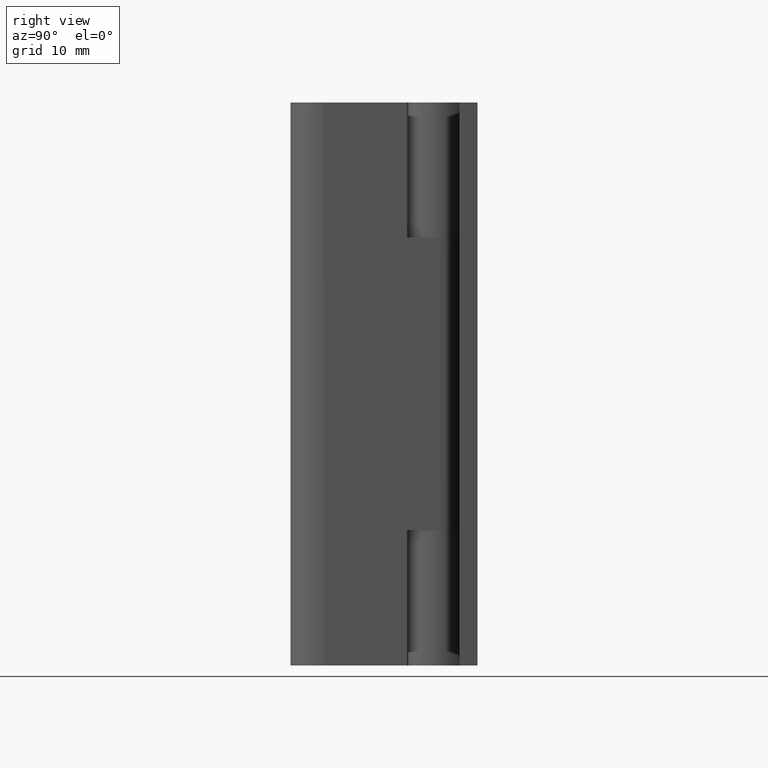
[diagram: clean part render]
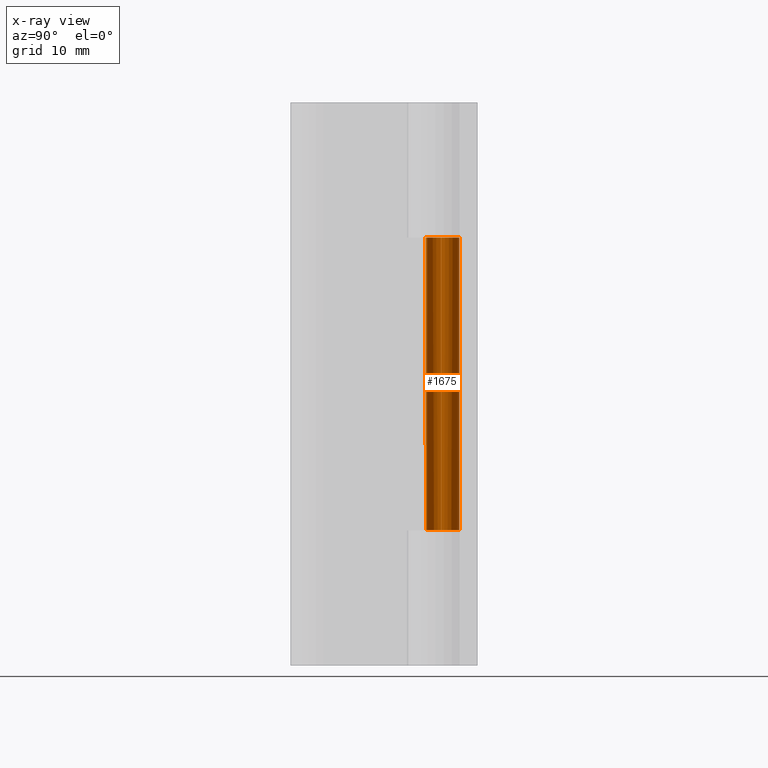
[diagram: x-ray — body ghosted, one internal face saturated and labeled with its STEP entity id]
A machine part, right view, then the same camera in x-ray: the body is ghosted and one INTERNAL B-rep face — a face not visible from any outside direction — is saturated and labeled: STEP entity #1675.
In plain terms, the highlighted face is a freeform B-spline surface patch.
Its self-contained STEP definition (entity closure, byte-faithful):
#929=CARTESIAN_POINT('',(1.494292002763210,-0.130734121322301,38.000006999999847));
#930=VERTEX_POINT('',#929);
#931=CARTESIAN_POINT('',(0.583391531890885,-1.381902428002066,38.000006999999847));
#932=VERTEX_POINT('',#931);
#933=CARTESIAN_POINT('',(1.494292002763210,-0.130734121322301,38.000006999999847));
#934=CARTESIAN_POINT('',(1.593654048131212,1.004974814262766,38.000006999999854));
#935=CARTESIAN_POINT('',(0.525999249306746,1.404750792748928,38.000006999999847));
#936=CARTESIAN_POINT('',(-0.541655549517720,1.804526771235089,38.000006999999854));
#937=CARTESIAN_POINT('',(-1.212661432739230,0.882865929542442,38.000006999999847));
#938=CARTESIAN_POINT('',(-1.883667315960740,-0.038794912150206,38.000006999999854));
#939=CARTESIAN_POINT('',(-1.175282553415192,-0.932046629540532,38.000006999999847));
#940=CARTESIAN_POINT('',(-0.466897790869645,-1.825298346930859,38.000006999999854));
#941=CARTESIAN_POINT('',(0.583391531890884,-1.381902428002067,38.000006999999847));
#949=(BOUNDED_CURVE()B_SPLINE_CURVE(2,(#933,#934,#935,#936,#937,#938,#939,#940,#941),.UNSPECIFIED.,.F.,.U.)B_SPLINE_CURVE_WITH_KNOTS((3,2,2,2,3),(0.0,0.250000000000000,0.500000000000000,0.750000000000000,1.0),.UNSPECIFIED.)CURVE()GEOMETRIC_REPRESENTATION_ITEM()RATIONAL_B_SPLINE_CURVE((1.0,0.796150126983554,1.0,0.796150126983554,1.0,0.796150126983554,1.0,0.796150126983554,1.0))REPRESENTATION_ITEM(''));
#950=EDGE_CURVE('',#930,#932,#949,.T.);
#1035=CARTESIAN_POINT('',(1.494292002763210,-0.130734121322301,12.0));
#1036=VERTEX_POINT('',#1035);
#1042=CARTESIAN_POINT('',(0.583391531890885,-1.381902428002066,12.0));
#1043=VERTEX_POINT('',#1042);
#1044=CARTESIAN_POINT('',(0.583391531890885,-1.381902428002067,12.0));
#1045=CARTESIAN_POINT('',(-0.466897790869644,-1.825298346930859,12.000000000000002));
#1046=CARTESIAN_POINT('',(-1.175282553415192,-0.932046629540533,12.0));
#1047=CARTESIAN_POINT('',(-1.883667315960740,-0.038794912150207,12.000000000000002));
#1048=CARTESIAN_POINT('',(-1.212661432739230,0.882865929542441,12.0));
#1049=CARTESIAN_POINT('',(-0.541655549517720,1.804526771235089,12.000000000000002));
#1050=CARTESIAN_POINT('',(0.525999249306745,1.404750792748928,12.0));
#1051=CARTESIAN_POINT('',(1.593654048131212,1.004974814262766,12.000000000000002));
#1052=CARTESIAN_POINT('',(1.494292002763210,-0.130734121322301,12.0));
#1060=(BOUNDED_CURVE()B_SPLINE_CURVE(2,(#1044,#1045,#1046,#1047,#1048,#1049,#1050,#1051,#1052),.UNSPECIFIED.,.F.,.U.)B_SPLINE_CURVE_WITH_KNOTS((3,2,2,2,3),(0.0,0.250000000000000,0.500000000000000,0.750000000000000,1.0),.UNSPECIFIED.)CURVE()GEOMETRIC_REPRESENTATION_ITEM()RATIONAL_B_SPLINE_CURVE((1.0,0.796150126983554,1.0,0.796150126983554,1.0,0.796150126983554,1.0,0.796150126983554,1.0))REPRESENTATION_ITEM(''));
#1061=EDGE_CURVE('',#1043,#1036,#1060,.T.);
#1635=CARTESIAN_POINT('',(0.583391531890885,-1.381902428002066,12.0));
#1636=CARTESIAN_POINT('',(0.583391531890885,-1.381902428002066,38.000006999999847));
#1637=QUASI_UNIFORM_CURVE('',1,(#1635,#1636),.UNSPECIFIED.,.F.,.U.);
#1638=EDGE_CURVE('',#1043,#932,#1637,.T.);
#1643=CARTESIAN_POINT('',(0.622039400688237,-1.364942117450926,11.349999824999999));
#1644=CARTESIAN_POINT('',(0.622039400688237,-1.364942117450926,38.666257179374853));
#1645=CARTESIAN_POINT('',(-1.043615967820009,-2.124024318764321,11.349999825000001));
#1646=CARTESIAN_POINT('',(-1.043615967820009,-2.124024318764321,38.666257179374860));
#1647=CARTESIAN_POINT('',(-1.460567496857935,-0.341676143624551,11.349999824999999));
#1648=CARTESIAN_POINT('',(-1.460567496857935,-0.341676143624551,38.666257179374853));
#1649=CARTESIAN_POINT('',(-1.877519025895861,1.440672031515219,11.349999825000001));
#1650=CARTESIAN_POINT('',(-1.877519025895861,1.440672031515219,38.666257179374860));
#1651=CARTESIAN_POINT('',(-0.047987855735489,1.499232192057624,11.349999824999999));
#1652=CARTESIAN_POINT('',(-0.047987855735489,1.499232192057624,38.666257179374853));
#1653=CARTESIAN_POINT('',(1.781543314424883,1.557792352600030,11.349999825000001));
#1654=CARTESIAN_POINT('',(1.781543314424883,1.557792352600030,38.666257179374860));
#1655=CARTESIAN_POINT('',(1.479428318273713,-0.247571910946724,11.349999824999999));
#1656=CARTESIAN_POINT('',(1.479428318273713,-0.247571910946724,38.666257179374853));
#1664=(BOUNDED_SURFACE()B_SPLINE_SURFACE(1,2,((#1643,#1645,#1647,#1649,#1651,#1653,#1655),(#1644,#1646,#1648,#1650,#1652,#1654,#1656)),.UNSPECIFIED.,.F.,.F.,.U.)B_SPLINE_SURFACE_WITH_KNOTS((2,2),(3,2,2,3),(0.0,27.316257354374859),(0.0,2.840458804494715,5.680917608989430,8.521376413484145),.UNSPECIFIED.)GEOMETRIC_REPRESENTATION_ITEM()RATIONAL_B_SPLINE_SURFACE(((1.0,0.633830967398710,1.0,0.633830967398710,1.0,0.633830967398710,1.0),(1.0,0.633830967398710,1.0,0.633830967398710,1.0,0.633830967398710,1.0)))REPRESENTATION_ITEM('')SURFACE());
#1665=CARTESIAN_POINT('',(1.494292002763210,-0.130734121322301,12.0));
#1666=CARTESIAN_POINT('',(1.494292002763210,-0.130734121322301,38.000006999999847));
#1667=QUASI_UNIFORM_CURVE('',1,(#1665,#1666),.UNSPECIFIED.,.F.,.U.);
#1668=EDGE_CURVE('',#1036,#930,#1667,.T.);
#1669=ORIENTED_EDGE('',*,*,#1668,.T.);
#1670=ORIENTED_EDGE('',*,*,#950,.T.);
#1671=ORIENTED_EDGE('',*,*,#1638,.F.);
#1672=ORIENTED_EDGE('',*,*,#1061,.T.);
#1673=EDGE_LOOP('',(#1669,#1670,#1671,#1672));
#1674=FACE_OUTER_BOUND('',#1673,.T.);
#1675=ADVANCED_FACE('',(#1674),#1664,.F.);